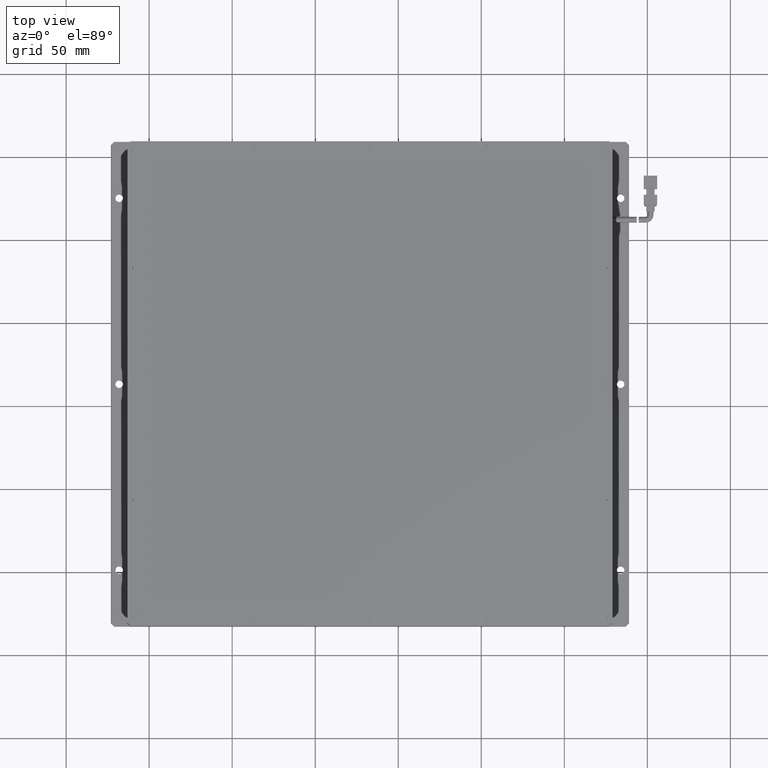
[diagram: clean part render]
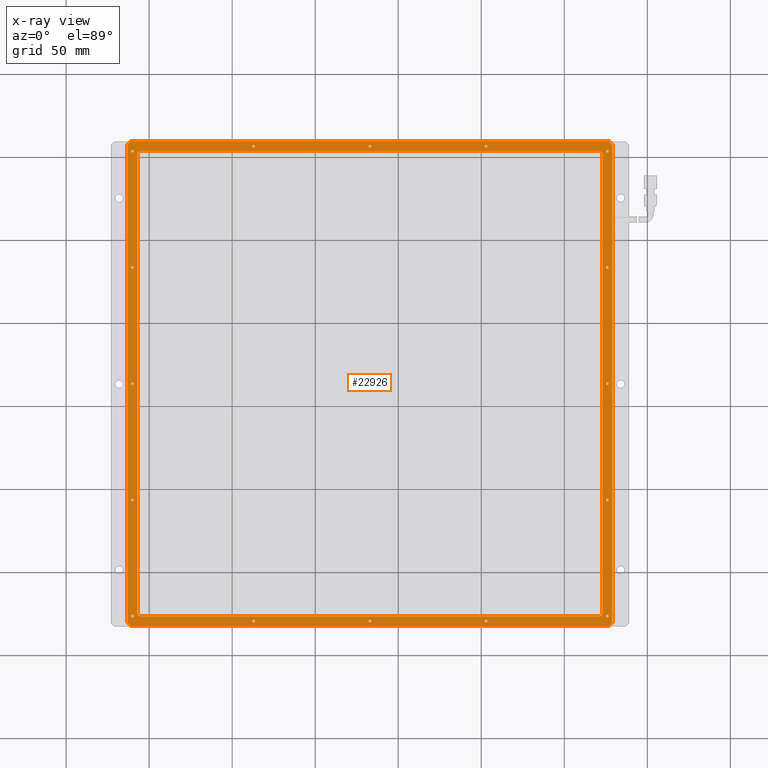
[diagram: x-ray — body ghosted, one internal face saturated and labeled with its STEP entity id]
A machine part, top view, then the same camera in x-ray: the body is ghosted and one INTERNAL B-rep face — a face not visible from any outside direction — is saturated and labeled: STEP entity #22926.
In plain terms, the highlighted planar face has unit normal (0, 0, 1).
Its self-contained STEP definition (entity closure, byte-faithful):
#121 = EDGE_CURVE ( 'NONE', #17337, #14271, #4350, .T. ) ;
#125 = EDGE_CURVE ( 'NONE', #15209, #19633, #15838, .T. ) ;
#135 = CARTESIAN_POINT ( 'NONE',  ( -37.08067712634184700, 156.2698045692266600, 8.499999999971805700 ) ) ;
#241 = EDGE_LOOP ( 'NONE', ( #23982, #7365 ) ) ;
#368 = CARTESIAN_POINT ( 'NONE',  ( 176.7193228736582000, 13.26980456922666100, 8.499999999971805700 ) ) ;
#505 = LINE ( 'NONE', #24873, #16975 ) ;
#518 = CARTESIAN_POINT ( 'NONE',  ( -110.0806771263418400, 13.26980456922666100, 8.499999999971805700 ) ) ;
#528 = FACE_OUTER_BOUND ( 'NONE', #4946, .T. ) ;
#536 = CARTESIAN_POINT ( 'NONE',  ( 178.9193228736581900, 157.2698045692267200, 8.499999999971805700 ) ) ;
#583 = ORIENTED_EDGE ( 'NONE', *, *, #10219, .T. ) ;
#628 = DIRECTION ( 'NONE',  ( 0.0000000000000000000, 0.0000000000000000000, -1.000000000000000000 ) ) ;
#667 = VERTEX_POINT ( 'NONE', #7079 ) ;
#686 = AXIS2_PLACEMENT_3D ( 'NONE', #12838, #27772, #14992 ) ;
#783 = CARTESIAN_POINT ( 'NONE',  ( 32.11932287365817700, -129.7301954307733600, 8.499999999971805700 ) ) ;
#826 = ORIENTED_EDGE ( 'NONE', *, *, #16343, .T. ) ;
#831 = DIRECTION ( 'NONE',  ( 0.0000000000000000000, 0.0000000000000000000, -1.000000000000000000 ) ) ;
#864 = CIRCLE ( 'NONE', #17338, 0.8000000000000229200 ) ;
#876 = EDGE_CURVE ( 'NONE', #27714, #27156, #8261, .T. ) ;
#913 = VECTOR ( 'NONE', #9786, 1000.000000000000000 ) ;
#1025 = DIRECTION ( 'NONE',  ( 0.0000000000000000000, -1.000000000000000000, -0.0000000000000000000 ) ) ;
#1127 = VERTEX_POINT ( 'NONE', #11295 ) ;
#1160 = DIRECTION ( 'NONE',  ( 1.000000000000000000, 0.0000000000000000000, 0.0000000000000000000 ) ) ;
#1204 = FACE_BOUND ( 'NONE', #12248, .T. ) ;
#1264 = ORIENTED_EDGE ( 'NONE', *, *, #9440, .T. ) ;
#1271 = CARTESIAN_POINT ( 'NONE',  ( -110.8806771263418400, -56.73019543077334200, 8.499999999971805700 ) ) ;
#1307 = EDGE_LOOP ( 'NONE', ( #5126, #4169, #1677, #1264, #20111, #6058, #583, #22020 ) ) ;
#1548 = EDGE_LOOP ( 'NONE', ( #2526, #27334 ) ) ;
#1561 = EDGE_CURVE ( 'NONE', #27512, #15292, #12966, .T. ) ;
#1586 = AXIS2_PLACEMENT_3D ( 'NONE', #15060, #18545, #18577 ) ;
#1677 = ORIENTED_EDGE ( 'NONE', *, *, #26527, .T. ) ;
#1778 = DIRECTION ( 'NONE',  ( 1.000000000000000000, 0.0000000000000000000, 0.0000000000000000000 ) ) ;
#1858 = FACE_BOUND ( 'NONE', #3466, .T. ) ;
#1919 = EDGE_CURVE ( 'NONE', #9877, #17704, #21268, .T. ) ;
#1934 = VERTEX_POINT ( 'NONE', #7402 ) ;
#1962 = DIRECTION ( 'NONE',  ( -0.0000000000000000000, 1.000000000000000000, 0.0000000000000000000 ) ) ;
#2010 = DIRECTION ( 'NONE',  ( -0.0000000000000000000, 1.000000000000000000, 0.0000000000000000000 ) ) ;
#2137 = CIRCLE ( 'NONE', #8951, 0.7999999999999951600 ) ;
#2301 = DIRECTION ( 'NONE',  ( 1.000000000000000000, 0.0000000000000000000, 0.0000000000000000000 ) ) ;
#2526 = ORIENTED_EDGE ( 'NONE', *, *, #27077, .T. ) ;
#2663 = DIRECTION ( 'NONE',  ( 1.000000000000000000, 0.0000000000000000000, 0.0000000000000000000 ) ) ;
#2670 = DIRECTION ( 'NONE',  ( 0.0000000000000000000, 0.0000000000000000000, -1.000000000000000000 ) ) ;
#2674 = DIRECTION ( 'NONE',  ( -0.7071067811865573400, 0.7071067811865378000, 0.0000000000000000000 ) ) ;
#2742 = CARTESIAN_POINT ( 'NONE',  ( -110.0806771263418400, -56.73019543077334200, 8.499999999971805700 ) ) ;
#2785 = VERTEX_POINT ( 'NONE', #22803 ) ;
#2939 = DIRECTION ( 'NONE',  ( 0.0000000000000000000, 0.0000000000000000000, -1.000000000000000000 ) ) ;
#2996 = CARTESIAN_POINT ( 'NONE',  ( 102.9193228736582300, -129.7301954307733600, 8.499999999971805700 ) ) ;
#3079 = CARTESIAN_POINT ( 'NONE',  ( 32.91932287365817400, -129.7301954307733600, 8.499999999971805700 ) ) ;
#3096 = AXIS2_PLACEMENT_3D ( 'NONE', #6433, #21489, #8593 ) ;
#3137 = CARTESIAN_POINT ( 'NONE',  ( 102.1193228736582500, -129.7301954307733600, 8.499999999971805700 ) ) ;
#3157 = VERTEX_POINT ( 'NONE', #17328 ) ;
#3277 = DIRECTION ( 'NONE',  ( 0.0000000000000000000, -0.0000000000000000000, -1.000000000000000000 ) ) ;
#3286 = DIRECTION ( 'NONE',  ( 0.0000000000000000000, 0.0000000000000000000, -1.000000000000000000 ) ) ;
#3433 = CARTESIAN_POINT ( 'NONE',  ( -110.0806771263418400, -126.7301954307733500, 8.499999999971805700 ) ) ;
#3441 = VECTOR ( 'NONE', #6635, 999.9999999999998900 ) ;
#3466 = EDGE_LOOP ( 'NONE', ( #24879, #16862 ) ) ;
#3543 = LINE ( 'NONE', #536, #9224 ) ;
#3743 = CARTESIAN_POINT ( 'NONE',  ( 176.9193228736579000, -132.7301954307733900, 8.499999999971805700 ) ) ;
#3821 = ORIENTED_EDGE ( 'NONE', *, *, #12165, .T. ) ;
#3824 = ORIENTED_EDGE ( 'NONE', *, *, #9458, .T. ) ;
#3844 = CARTESIAN_POINT ( 'NONE',  ( -36.28067712634185000, -129.7301954307733600, 8.499999999971805700 ) ) ;
#3943 = AXIS2_PLACEMENT_3D ( 'NONE', #7170, #22182, #9309 ) ;
#4025 = CIRCLE ( 'NONE', #6360, 0.8000000000000229200 ) ;
#4093 = CIRCLE ( 'NONE', #20514, 0.7999999999999951600 ) ;
#4110 = LINE ( 'NONE', #25962, #3441 ) ;
#4169 = ORIENTED_EDGE ( 'NONE', *, *, #26145, .T. ) ;
#4214 = DIRECTION ( 'NONE',  ( 0.0000000000000000000, 0.0000000000000000000, -1.000000000000000000 ) ) ;
#4253 = CARTESIAN_POINT ( 'NONE',  ( -107.0806771263419000, -124.7301954307734100, 8.499999999971805700 ) ) ;
#4350 = CIRCLE ( 'NONE', #1586, 0.8000000000000229200 ) ;
#4356 = CARTESIAN_POINT ( 'NONE',  ( -110.0806771263418400, 13.26980456922666100, 8.499999999971805700 ) ) ;
#4425 = AXIS2_PLACEMENT_3D ( 'NONE', #14969, #18480, #18634 ) ;
#4554 = EDGE_CURVE ( 'NONE', #14271, #17337, #4823, .T. ) ;
#4641 = CARTESIAN_POINT ( 'NONE',  ( -113.0806771263418400, -132.7301954307733600, 8.499999999971805700 ) ) ;
#4664 = EDGE_LOOP ( 'NONE', ( #27573, #24956 ) ) ;
#4823 = CIRCLE ( 'NONE', #6385, 0.8000000000000229200 ) ;
#4876 = DIRECTION ( 'NONE',  ( 1.000000000000000000, 0.0000000000000000000, 0.0000000000000000000 ) ) ;
#4882 = AXIS2_PLACEMENT_3D ( 'NONE', #10293, #25276, #12482 ) ;
#4946 = EDGE_LOOP ( 'NONE', ( #25879, #9933, #10318, #8910, #7266, #15126, #12478, #826 ) ) ;
#5021 = CIRCLE ( 'NONE', #22189, 0.7999999999999951600 ) ;
#5036 = ORIENTED_EDGE ( 'NONE', *, *, #16015, .T. ) ;
#5052 = ORIENTED_EDGE ( 'NONE', *, *, #1561, .T. ) ;
#5111 = VECTOR ( 'NONE', #20384, 999.9999999999998900 ) ;
#5126 = ORIENTED_EDGE ( 'NONE', *, *, #13226, .T. ) ;
#5132 = DIRECTION ( 'NONE',  ( 1.000000000000000000, 0.0000000000000000000, 0.0000000000000000000 ) ) ;
#5230 = DIRECTION ( 'NONE',  ( 1.000000000000000000, 0.0000000000000000000, 0.0000000000000000000 ) ) ;
#5341 = CARTESIAN_POINT ( 'NONE',  ( 33.71932287365817200, -129.7301954307733600, 8.499999999971805700 ) ) ;
#5362 = CARTESIAN_POINT ( 'NONE',  ( -110.0806771263418400, 83.26980456922672100, 8.499999999971805700 ) ) ;
#5439 = AXIS2_PLACEMENT_3D ( 'NONE', #5362, #20443, #7525 ) ;
#5488 = CIRCLE ( 'NONE', #17133, 0.7999999999999951600 ) ;
#5521 = LINE ( 'NONE', #26705, #11253 ) ;
#5583 = DIRECTION ( 'NONE',  ( 1.000000000000000000, 0.0000000000000000000, 0.0000000000000000000 ) ) ;
#5695 = VERTEX_POINT ( 'NONE', #15204 ) ;
#5820 = CARTESIAN_POINT ( 'NONE',  ( 175.9193228736581900, -56.73019543077334200, 8.499999999971805700 ) ) ;
#5902 = DIRECTION ( 'NONE',  ( 0.0000000000000000000, 0.0000000000000000000, -1.000000000000000000 ) ) ;
#6058 = ORIENTED_EDGE ( 'NONE', *, *, #125, .T. ) ;
#6194 = FACE_BOUND ( 'NONE', #11235, .T. ) ;
#6202 = VERTEX_POINT ( 'NONE', #15565 ) ;
#6238 = CARTESIAN_POINT ( 'NONE',  ( -109.2806771263418400, 153.2698045692266600, 8.499999999971805700 ) ) ;
#6304 = CIRCLE ( 'NONE', #23430, 0.7999999999999951600 ) ;
#6360 = AXIS2_PLACEMENT_3D ( 'NONE', #9863, #24880, #12051 ) ;
#6363 = CIRCLE ( 'NONE', #22754, 0.7999999999999951600 ) ;
#6385 = AXIS2_PLACEMENT_3D ( 'NONE', #22451, #831, #23046 ) ;
#6433 = CARTESIAN_POINT ( 'NONE',  ( 170.9193228736581300, 151.2698045692266100, 8.499999999971805700 ) ) ;
#6465 = DIRECTION ( 'NONE',  ( -1.000000000000000000, -0.0000000000000000000, 0.0000000000000000000 ) ) ;
#6517 = DIRECTION ( 'NONE',  ( 1.000000000000000000, 0.0000000000000000000, 0.0000000000000000000 ) ) ;
#6552 = CIRCLE ( 'NONE', #686, 0.7999999999999951600 ) ;
#6582 = ORIENTED_EDGE ( 'NONE', *, *, #13488, .T. ) ;
#6635 = DIRECTION ( 'NONE',  ( -0.7071067811865486800, -0.7071067811865464600, 0.0000000000000000000 ) ) ;
#6685 = EDGE_LOOP ( 'NONE', ( #14333, #5052 ) ) ;
#6767 = VERTEX_POINT ( 'NONE', #25605 ) ;
#6869 = FACE_BOUND ( 'NONE', #25315, .T. ) ;
#6897 = CIRCLE ( 'NONE', #8367, 0.8000000000000229200 ) ;
#6916 = CARTESIAN_POINT ( 'NONE',  ( 176.7193228736582000, 153.2698045692266600, 8.499999999971805700 ) ) ;
#7079 = CARTESIAN_POINT ( 'NONE',  ( -109.2806771263418400, -126.7301954307733500, 8.499999999971805700 ) ) ;
#7148 = CARTESIAN_POINT ( 'NONE',  ( -36.28067712634185000, 156.2698045692266600, 8.499999999971805700 ) ) ;
#7170 = CARTESIAN_POINT ( 'NONE',  ( -110.0806771263418400, -126.7301954307733500, 8.499999999971805700 ) ) ;
#7225 = DIRECTION ( 'NONE',  ( 0.0000000000000000000, 0.0000000000000000000, -1.000000000000000000 ) ) ;
#7266 = ORIENTED_EDGE ( 'NONE', *, *, #13482, .T. ) ;
#7297 = VECTOR ( 'NONE', #1962, 1000.000000000000000 ) ;
#7323 = AXIS2_PLACEMENT_3D ( 'NONE', #22540, #9686, #24716 ) ;
#7329 = EDGE_CURVE ( 'NONE', #16995, #22467, #16706, .T. ) ;
#7337 = EDGE_CURVE ( 'NONE', #22844, #11644, #16054, .T. ) ;
#7365 = ORIENTED_EDGE ( 'NONE', *, *, #11408, .T. ) ;
#7402 = CARTESIAN_POINT ( 'NONE',  ( -37.88067712634184400, -129.7301954307733600, 8.499999999971805700 ) ) ;
#7403 = CARTESIAN_POINT ( 'NONE',  ( -110.8806771263418400, 153.2698045692266600, 8.499999999971805700 ) ) ;
#7411 = VERTEX_POINT ( 'NONE', #12984 ) ;
#7475 = CARTESIAN_POINT ( 'NONE',  ( -113.0806771263418400, -130.7301954307733100, 8.499999999971805700 ) ) ;
#7511 = CARTESIAN_POINT ( 'NONE',  ( 176.7193228736582000, 83.26980456922672100, 8.499999999971805700 ) ) ;
#7520 = EDGE_CURVE ( 'NONE', #14305, #12110, #25022, .T. ) ;
#7525 = DIRECTION ( 'NONE',  ( 1.000000000000000000, 0.0000000000000000000, 0.0000000000000000000 ) ) ;
#7545 = FACE_BOUND ( 'NONE', #22529, .T. ) ;
#7567 = AXIS2_PLACEMENT_3D ( 'NONE', #20120, #7225, #22230 ) ;
#7620 = CARTESIAN_POINT ( 'NONE',  ( -113.0806771263418400, 153.2698045692266100, 8.499999999971805700 ) ) ;
#7637 = DIRECTION ( 'NONE',  ( 0.0000000000000000000, 0.0000000000000000000, -1.000000000000000000 ) ) ;
#7639 = AXIS2_PLACEMENT_3D ( 'NONE', #17105, #4214, #19282 ) ;
#7776 = EDGE_CURVE ( 'NONE', #6202, #21687, #864, .T. ) ;
#7824 = VECTOR ( 'NONE', #6465, 1000.000000000000000 ) ;
#7979 = DIRECTION ( 'NONE',  ( 1.000000000000000000, 0.0000000000000000000, 0.0000000000000000000 ) ) ;
#7984 = CARTESIAN_POINT ( 'NONE',  ( 178.9193228736582500, -130.7301954307732200, 8.499999999971805700 ) ) ;
#8064 = ORIENTED_EDGE ( 'NONE', *, *, #4554, .T. ) ;
#8118 = CARTESIAN_POINT ( 'NONE',  ( 32.91932287365817400, 156.2698045692266600, 8.499999999971805700 ) ) ;
#8214 = FACE_BOUND ( 'NONE', #21236, .T. ) ;
#8241 = DIRECTION ( 'NONE',  ( 0.0000000000000000000, 0.0000000000000000000, -1.000000000000000000 ) ) ;
#8261 = CIRCLE ( 'NONE', #25309, 0.8000000000000229200 ) ;
#8295 = CIRCLE ( 'NONE', #7567, 0.7999999999999951600 ) ;
#8366 = VERTEX_POINT ( 'NONE', #26149 ) ;
#8367 = AXIS2_PLACEMENT_3D ( 'NONE', #5820, #20893, #7979 ) ;
#8406 = CIRCLE ( 'NONE', #5439, 0.7999999999999951600 ) ;
#8474 = VERTEX_POINT ( 'NONE', #22296 ) ;
#8593 = DIRECTION ( 'NONE',  ( 1.000000000000000000, 0.0000000000000000000, 0.0000000000000000000 ) ) ;
#8813 = CARTESIAN_POINT ( 'NONE',  ( 32.91932287365817400, 156.2698045692266600, 8.499999999971805700 ) ) ;
#8846 = AXIS2_PLACEMENT_3D ( 'NONE', #13516, #628, #15667 ) ;
#8861 = EDGE_LOOP ( 'NONE', ( #11988, #9250 ) ) ;
#8864 = CARTESIAN_POINT ( 'NONE',  ( -113.0806771263418400, -132.7301954307733600, 8.499999999971805700 ) ) ;
#8910 = ORIENTED_EDGE ( 'NONE', *, *, #11247, .T. ) ;
#8914 = EDGE_CURVE ( 'NONE', #7411, #17420, #12450, .T. ) ;
#8951 = AXIS2_PLACEMENT_3D ( 'NONE', #3079, #18158, #5230 ) ;
#8955 = DIRECTION ( 'NONE',  ( 1.000000000000000000, 0.0000000000000000000, -0.0000000000000000000 ) ) ;
#8962 = CARTESIAN_POINT ( 'NONE',  ( -113.0806771263418400, 157.2698045692267200, 8.499999999971805700 ) ) ;
#9224 = VECTOR ( 'NONE', #2674, 1000.000000000000000 ) ;
#9234 = CARTESIAN_POINT ( 'NONE',  ( -110.8806771263418400, -126.7301954307733500, 8.499999999971805700 ) ) ;
#9250 = ORIENTED_EDGE ( 'NONE', *, *, #7329, .T. ) ;
#9309 = DIRECTION ( 'NONE',  ( 1.000000000000000000, 0.0000000000000000000, 0.0000000000000000000 ) ) ;
#9337 = CIRCLE ( 'NONE', #3943, 0.7999999999999951600 ) ;
#9354 = DIRECTION ( 'NONE',  ( -0.0000000000000000000, 0.0000000000000000000, -1.000000000000000000 ) ) ;
#9440 = EDGE_CURVE ( 'NONE', #19296, #22041, #12444, .T. ) ;
#9458 = EDGE_CURVE ( 'NONE', #25607, #8474, #23827, .T. ) ;
#9533 = EDGE_CURVE ( 'NONE', #13414, #18841, #14812, .T. ) ;
#9686 = DIRECTION ( 'NONE',  ( 0.0000000000000000000, 0.0000000000000000000, 1.000000000000000000 ) ) ;
#9755 = EDGE_LOOP ( 'NONE', ( #25750, #12874 ) ) ;
#9786 = DIRECTION ( 'NONE',  ( 1.000000000000000000, 0.0000000000000000000, -0.0000000000000000000 ) ) ;
#9863 = CARTESIAN_POINT ( 'NONE',  ( 175.9193228736581900, 153.2698045692266600, 8.499999999971805700 ) ) ;
#9877 = VERTEX_POINT ( 'NONE', #25679 ) ;
#9894 = EDGE_CURVE ( 'NONE', #22041, #15209, #24113, .T. ) ;
#9906 = ORIENTED_EDGE ( 'NONE', *, *, #25786, .T. ) ;
#9933 = ORIENTED_EDGE ( 'NONE', *, *, #23394, .T. ) ;
#10160 = DIRECTION ( 'NONE',  ( 0.0000000000000000000, 0.0000000000000000000, -1.000000000000000000 ) ) ;
#10173 = EDGE_CURVE ( 'NONE', #8474, #25607, #10664, .T. ) ;
#10175 = CARTESIAN_POINT ( 'NONE',  ( -37.08067712634184700, 156.2698045692266600, 8.499999999971805700 ) ) ;
#10219 = EDGE_CURVE ( 'NONE', #19633, #13414, #13075, .T. ) ;
#10253 = CARTESIAN_POINT ( 'NONE',  ( 32.91932287365817400, -129.7301954307733600, 8.499999999971805700 ) ) ;
#10293 = CARTESIAN_POINT ( 'NONE',  ( 102.9193228736582300, -129.7301954307733600, 8.499999999971805700 ) ) ;
#10308 = DIRECTION ( 'NONE',  ( 1.000000000000000000, 0.0000000000000000000, 0.0000000000000000000 ) ) ;
#10318 = ORIENTED_EDGE ( 'NONE', *, *, #1919, .T. ) ;
#10338 = VERTEX_POINT ( 'NONE', #19530 ) ;
#10352 = DIRECTION ( 'NONE',  ( 0.0000000000000000000, 0.0000000000000000000, -1.000000000000000000 ) ) ;
#10527 = CIRCLE ( 'NONE', #22532, 0.8000000000000229200 ) ;
#10664 = CIRCLE ( 'NONE', #4882, 0.7999999999999951600 ) ;
#10914 = EDGE_CURVE ( 'NONE', #23495, #12221, #22352, .T. ) ;
#11007 = DIRECTION ( 'NONE',  ( 1.000000000000000000, 0.0000000000000000000, 0.0000000000000000000 ) ) ;
#11235 = EDGE_LOOP ( 'NONE', ( #20037, #20091 ) ) ;
#11247 = EDGE_CURVE ( 'NONE', #17704, #14967, #505, .T. ) ;
#11253 = VECTOR ( 'NONE', #1025, 1000.000000000000000 ) ;
#11295 = CARTESIAN_POINT ( 'NONE',  ( 170.9193228736581300, 153.2698045692266100, 8.499999999971805700 ) ) ;
#11340 = EDGE_CURVE ( 'NONE', #6767, #5695, #19332, .T. ) ;
#11365 = VERTEX_POINT ( 'NONE', #3844 ) ;
#11408 = EDGE_CURVE ( 'NONE', #18412, #22308, #17298, .T. ) ;
#11560 = ORIENTED_EDGE ( 'NONE', *, *, #27587, .T. ) ;
#11644 = VERTEX_POINT ( 'NONE', #6916 ) ;
#11869 = EDGE_LOOP ( 'NONE', ( #11560, #9906 ) ) ;
#11944 = FACE_BOUND ( 'NONE', #241, .T. ) ;
#11988 = ORIENTED_EDGE ( 'NONE', *, *, #17313, .T. ) ;
#12051 = DIRECTION ( 'NONE',  ( 1.000000000000000000, 0.0000000000000000000, 0.0000000000000000000 ) ) ;
#12110 = VERTEX_POINT ( 'NONE', #15372 ) ;
#12155 = AXIS2_PLACEMENT_3D ( 'NONE', #18829, #5902, #20960 ) ;
#12165 = EDGE_CURVE ( 'NONE', #8366, #24232, #15531, .T. ) ;
#12221 = VERTEX_POINT ( 'NONE', #7148 ) ;
#12248 = EDGE_LOOP ( 'NONE', ( #6582, #16683 ) ) ;
#12379 = DIRECTION ( 'NONE',  ( 1.000000000000000000, 0.0000000000000000000, 0.0000000000000000000 ) ) ;
#12385 = EDGE_CURVE ( 'NONE', #11644, #22844, #4025, .T. ) ;
#12444 = CIRCLE ( 'NONE', #14292, 2.000000000000001800 ) ;
#12450 = CIRCLE ( 'NONE', #21589, 0.8000000000000229200 ) ;
#12478 = ORIENTED_EDGE ( 'NONE', *, *, #23195, .T. ) ;
#12482 = DIRECTION ( 'NONE',  ( 1.000000000000000000, 0.0000000000000000000, 0.0000000000000000000 ) ) ;
#12638 = FACE_BOUND ( 'NONE', #9755, .T. ) ;
#12838 = CARTESIAN_POINT ( 'NONE',  ( -110.0806771263418400, 153.2698045692266600, 8.499999999971805700 ) ) ;
#12874 = ORIENTED_EDGE ( 'NONE', *, *, #7776, .T. ) ;
#12923 = CARTESIAN_POINT ( 'NONE',  ( -113.0806771263418400, 159.2698045692266900, 8.499999999971805700 ) ) ;
#12966 = CIRCLE ( 'NONE', #21768, 0.7999999999999951600 ) ;
#12984 = CARTESIAN_POINT ( 'NONE',  ( 176.7193228736582000, -126.7301954307733500, 8.499999999971805700 ) ) ;
#13075 = LINE ( 'NONE', #14849, #7297 ) ;
#13087 = CARTESIAN_POINT ( 'NONE',  ( -113.0806771263418400, -126.7301954307734100, 8.499999999971805700 ) ) ;
#13226 = EDGE_CURVE ( 'NONE', #18841, #1127, #18056, .T. ) ;
#13323 = EDGE_CURVE ( 'NONE', #21687, #6202, #6897, .T. ) ;
#13332 = FACE_BOUND ( 'NONE', #8861, .T. ) ;
#13364 = ORIENTED_EDGE ( 'NONE', *, *, #21974, .T. ) ;
#13414 = VERTEX_POINT ( 'NONE', #25432 ) ;
#13442 = VECTOR ( 'NONE', #25858, 1000.000000000000000 ) ;
#13482 = EDGE_CURVE ( 'NONE', #14967, #20477, #18036, .T. ) ;
#13488 = EDGE_CURVE ( 'NONE', #16832, #18882, #6552, .T. ) ;
#13516 = CARTESIAN_POINT ( 'NONE',  ( -110.0806771263418400, 153.2698045692266600, 8.499999999971805700 ) ) ;
#13699 = ORIENTED_EDGE ( 'NONE', *, *, #19510, .T. ) ;
#13710 = CARTESIAN_POINT ( 'NONE',  ( 175.1193228736581800, 153.2698045692266600, 8.499999999971805700 ) ) ;
#13833 = CARTESIAN_POINT ( 'NONE',  ( -109.2806771263418400, -56.73019543077334200, 8.499999999971805700 ) ) ;
#14066 = DIRECTION ( 'NONE',  ( 0.0000000000000000000, 0.0000000000000000000, -1.000000000000000000 ) ) ;
#14067 = CARTESIAN_POINT ( 'NONE',  ( 176.7193228736582000, -56.73019543077334200, 8.499999999971805700 ) ) ;
#14125 = ORIENTED_EDGE ( 'NONE', *, *, #121, .T. ) ;
#14271 = VERTEX_POINT ( 'NONE', #368 ) ;
#14292 = AXIS2_PLACEMENT_3D ( 'NONE', #22228, #9354, #24405 ) ;
#14305 = VERTEX_POINT ( 'NONE', #8962 ) ;
#14317 = CIRCLE ( 'NONE', #15729, 0.7999999999999951600 ) ;
#14333 = ORIENTED_EDGE ( 'NONE', *, *, #23349, .T. ) ;
#14396 = CARTESIAN_POINT ( 'NONE',  ( -37.88067712634184400, 156.2698045692266600, 8.499999999971805700 ) ) ;
#14407 = VERTEX_POINT ( 'NONE', #9234 ) ;
#14499 = CARTESIAN_POINT ( 'NONE',  ( 175.1193228736581800, 83.26980456922672100, 8.499999999971805700 ) ) ;
#14513 = EDGE_CURVE ( 'NONE', #667, #14407, #20606, .T. ) ;
#14683 = DIRECTION ( 'NONE',  ( 0.0000000000000000000, 0.0000000000000000000, -1.000000000000000000 ) ) ;
#14812 = CIRCLE ( 'NONE', #25722, 2.000000000000001800 ) ;
#14849 = CARTESIAN_POINT ( 'NONE',  ( -107.0806771263419000, -132.7301954307733600, 8.499999999971805700 ) ) ;
#14967 = VERTEX_POINT ( 'NONE', #7984 ) ;
#14969 = CARTESIAN_POINT ( 'NONE',  ( -105.0806771263419000, -124.7301954307734100, 8.499999999971805700 ) ) ;
#14992 = DIRECTION ( 'NONE',  ( 1.000000000000000000, 0.0000000000000000000, 0.0000000000000000000 ) ) ;
#15060 = CARTESIAN_POINT ( 'NONE',  ( 175.9193228736581900, 13.26980456922666100, 8.499999999971805700 ) ) ;
#15126 = ORIENTED_EDGE ( 'NONE', *, *, #22759, .T. ) ;
#15190 = DIRECTION ( 'NONE',  ( 0.0000000000000000000, 0.0000000000000000000, -1.000000000000000000 ) ) ;
#15204 = CARTESIAN_POINT ( 'NONE',  ( 103.7193228736582300, 156.2698045692266600, 8.499999999971805700 ) ) ;
#15209 = VERTEX_POINT ( 'NONE', #15641 ) ;
#15292 = VERTEX_POINT ( 'NONE', #5341 ) ;
#15372 = CARTESIAN_POINT ( 'NONE',  ( -113.0806771263418400, -130.7301954307733100, 8.499999999971805700 ) ) ;
#15531 = CIRCLE ( 'NONE', #23251, 0.7999999999999951600 ) ;
#15556 = DIRECTION ( 'NONE',  ( 0.0000000000000000000, 0.0000000000000000000, -1.000000000000000000 ) ) ;
#15564 = CARTESIAN_POINT ( 'NONE',  ( 175.9193228736581900, -126.7301954307733500, 8.499999999971805700 ) ) ;
#15565 = CARTESIAN_POINT ( 'NONE',  ( 175.1193228736581800, -56.73019543077334200, 8.499999999971805700 ) ) ;
#15641 = CARTESIAN_POINT ( 'NONE',  ( -105.0806771263419000, -126.7301954307734100, 8.499999999971805700 ) ) ;
#15667 = DIRECTION ( 'NONE',  ( 1.000000000000000000, 0.0000000000000000000, 0.0000000000000000000 ) ) ;
#15729 = AXIS2_PLACEMENT_3D ( 'NONE', #26828, #14066, #1160 ) ;
#15838 = CIRCLE ( 'NONE', #4425, 2.000000000000001800 ) ;
#15848 = CARTESIAN_POINT ( 'NONE',  ( 175.9193228736581900, 83.26980456922672100, 8.499999999971805700 ) ) ;
#15866 = EDGE_CURVE ( 'NONE', #22308, #18412, #5488, .T. ) ;
#16015 = EDGE_CURVE ( 'NONE', #2785, #10338, #20982, .T. ) ;
#16054 = CIRCLE ( 'NONE', #21780, 0.8000000000000229200 ) ;
#16176 = VERTEX_POINT ( 'NONE', #27468 ) ;
#16188 = CARTESIAN_POINT ( 'NONE',  ( -105.0806771263419000, 151.2698045692266100, 8.499999999971805700 ) ) ;
#16199 = CARTESIAN_POINT ( 'NONE',  ( -110.0806771263418400, 83.26980456922672100, 8.499999999971805700 ) ) ;
#16343 = EDGE_CURVE ( 'NONE', #3157, #14305, #4110, .T. ) ;
#16609 = VERTEX_POINT ( 'NONE', #26970 ) ;
#16683 = ORIENTED_EDGE ( 'NONE', *, *, #16959, .T. ) ;
#16706 = CIRCLE ( 'NONE', #17498, 0.7999999999999951600 ) ;
#16832 = VERTEX_POINT ( 'NONE', #6238 ) ;
#16862 = ORIENTED_EDGE ( 'NONE', *, *, #7337, .T. ) ;
#16959 = EDGE_CURVE ( 'NONE', #18882, #16832, #25208, .T. ) ;
#16974 = AXIS2_PLACEMENT_3D ( 'NONE', #16199, #3286, #18350 ) ;
#16975 = VECTOR ( 'NONE', #27013, 1000.000000000000100 ) ;
#16995 = VERTEX_POINT ( 'NONE', #19961 ) ;
#17081 = EDGE_CURVE ( 'NONE', #10338, #2785, #8406, .T. ) ;
#17105 = CARTESIAN_POINT ( 'NONE',  ( 175.9193228736581900, -126.7301954307733500, 8.499999999971805700 ) ) ;
#17133 = AXIS2_PLACEMENT_3D ( 'NONE', #2742, #17797, #4876 ) ;
#17139 = AXIS2_PLACEMENT_3D ( 'NONE', #2996, #18070, #5132 ) ;
#17298 = CIRCLE ( 'NONE', #25064, 0.7999999999999951600 ) ;
#17313 = EDGE_CURVE ( 'NONE', #22467, #16995, #5021, .T. ) ;
#17328 = CARTESIAN_POINT ( 'NONE',  ( -111.0806771263418400, 159.2698045692267500, 8.499999999971805700 ) ) ;
#17337 = VERTEX_POINT ( 'NONE', #19594 ) ;
#17338 = AXIS2_PLACEMENT_3D ( 'NONE', #20553, #7637, #22641 ) ;
#17344 = VECTOR ( 'NONE', #2010, 1000.000000000000000 ) ;
#17420 = VERTEX_POINT ( 'NONE', #24126 ) ;
#17498 = AXIS2_PLACEMENT_3D ( 'NONE', #8118, #23148, #10308 ) ;
#17672 = FACE_BOUND ( 'NONE', #21312, .T. ) ;
#17704 = VERTEX_POINT ( 'NONE', #3743 ) ;
#17718 = DIRECTION ( 'NONE',  ( 1.000000000000000000, 0.0000000000000000000, 0.0000000000000000000 ) ) ;
#17797 = DIRECTION ( 'NONE',  ( 0.0000000000000000000, 0.0000000000000000000, -1.000000000000000000 ) ) ;
#18004 = DIRECTION ( 'NONE',  ( 1.000000000000000000, 0.0000000000000000000, 0.0000000000000000000 ) ) ;
#18036 = LINE ( 'NONE', #19214, #17344 ) ;
#18056 = LINE ( 'NONE', #7620, #913 ) ;
#18070 = DIRECTION ( 'NONE',  ( 0.0000000000000000000, 0.0000000000000000000, -1.000000000000000000 ) ) ;
#18158 = DIRECTION ( 'NONE',  ( 0.0000000000000000000, 0.0000000000000000000, -1.000000000000000000 ) ) ;
#18338 = DIRECTION ( 'NONE',  ( 1.000000000000000000, 0.0000000000000000000, 0.0000000000000000000 ) ) ;
#18349 = FACE_BOUND ( 'NONE', #27395, .T. ) ;
#18350 = DIRECTION ( 'NONE',  ( 1.000000000000000000, 0.0000000000000000000, 0.0000000000000000000 ) ) ;
#18412 = VERTEX_POINT ( 'NONE', #1271 ) ;
#18480 = DIRECTION ( 'NONE',  ( -0.0000000000000000000, -0.0000000000000000000, -1.000000000000000000 ) ) ;
#18505 = DIRECTION ( 'NONE',  ( 0.0000000000000000000, 0.0000000000000000000, -1.000000000000000000 ) ) ;
#18545 = DIRECTION ( 'NONE',  ( 0.0000000000000000000, 0.0000000000000000000, -1.000000000000000000 ) ) ;
#18577 = DIRECTION ( 'NONE',  ( 1.000000000000000000, 0.0000000000000000000, 0.0000000000000000000 ) ) ;
#18634 = DIRECTION ( 'NONE',  ( 1.000000000000000000, 0.0000000000000000000, 0.0000000000000000000 ) ) ;
#18719 = VECTOR ( 'NONE', #26140, 1000.000000000000000 ) ;
#18829 = CARTESIAN_POINT ( 'NONE',  ( 102.9193228736582300, 156.2698045692266600, 8.499999999971805700 ) ) ;
#18841 = VERTEX_POINT ( 'NONE', #20122 ) ;
#18882 = VERTEX_POINT ( 'NONE', #7403 ) ;
#18950 = DIRECTION ( 'NONE',  ( 1.000000000000000000, 0.0000000000000000000, 0.0000000000000000000 ) ) ;
#19053 = FACE_BOUND ( 'NONE', #4664, .T. ) ;
#19149 = ORIENTED_EDGE ( 'NONE', *, *, #17081, .T. ) ;
#19214 = CARTESIAN_POINT ( 'NONE',  ( 178.9193228736581900, -132.7301954307733600, 8.499999999971805700 ) ) ;
#19282 = DIRECTION ( 'NONE',  ( 1.000000000000000000, 0.0000000000000000000, 0.0000000000000000000 ) ) ;
#19296 = VERTEX_POINT ( 'NONE', #22104 ) ;
#19332 = CIRCLE ( 'NONE', #12155, 0.7999999999999951600 ) ;
#19368 = CARTESIAN_POINT ( 'NONE',  ( 170.9193228736581300, -126.7301954307734100, 8.499999999971805700 ) ) ;
#19441 = DIRECTION ( 'NONE',  ( 0.0000000000000000000, 0.0000000000000000000, -1.000000000000000000 ) ) ;
#19510 = EDGE_CURVE ( 'NONE', #12221, #23495, #4093, .T. ) ;
#19530 = CARTESIAN_POINT ( 'NONE',  ( -109.2806771263418400, 83.26980456922672100, 8.499999999971805700 ) ) ;
#19539 = AXIS2_PLACEMENT_3D ( 'NONE', #135, #15190, #2301 ) ;
#19594 = CARTESIAN_POINT ( 'NONE',  ( 175.1193228736581800, 13.26980456922666100, 8.499999999971805700 ) ) ;
#19633 = VERTEX_POINT ( 'NONE', #4253 ) ;
#19797 = ORIENTED_EDGE ( 'NONE', *, *, #10914, .T. ) ;
#19826 = DIRECTION ( 'NONE',  ( 0.0000000000000000000, 0.0000000000000000000, -1.000000000000000000 ) ) ;
#19846 = ORIENTED_EDGE ( 'NONE', *, *, #10173, .T. ) ;
#19961 = CARTESIAN_POINT ( 'NONE',  ( 32.11932287365817700, 156.2698045692266600, 8.499999999971805700 ) ) ;
#20037 = ORIENTED_EDGE ( 'NONE', *, *, #14513, .T. ) ;
#20091 = ORIENTED_EDGE ( 'NONE', *, *, #25563, .T. ) ;
#20111 = ORIENTED_EDGE ( 'NONE', *, *, #9894, .T. ) ;
#20120 = CARTESIAN_POINT ( 'NONE',  ( -37.08067712634184700, -129.7301954307733600, 8.499999999971805700 ) ) ;
#20122 = CARTESIAN_POINT ( 'NONE',  ( -105.0806771263419000, 153.2698045692266100, 8.499999999971805700 ) ) ;
#20203 = CARTESIAN_POINT ( 'NONE',  ( 178.9193228736582500, 157.2698045692267200, 8.499999999971805700 ) ) ;
#20343 = PLANE ( 'NONE',  #7323 ) ;
#20384 = DIRECTION ( 'NONE',  ( 0.7071067811865376900, -0.7071067811865574500, 0.0000000000000000000 ) ) ;
#20443 = DIRECTION ( 'NONE',  ( 0.0000000000000000000, 0.0000000000000000000, -1.000000000000000000 ) ) ;
#20477 = VERTEX_POINT ( 'NONE', #20203 ) ;
#20514 = AXIS2_PLACEMENT_3D ( 'NONE', #10175, #25174, #12379 ) ;
#20553 = CARTESIAN_POINT ( 'NONE',  ( 175.9193228736581900, -56.73019543077334200, 8.499999999971805700 ) ) ;
#20606 = CIRCLE ( 'NONE', #21043, 0.7999999999999951600 ) ;
#20893 = DIRECTION ( 'NONE',  ( 0.0000000000000000000, 0.0000000000000000000, -1.000000000000000000 ) ) ;
#20915 = CARTESIAN_POINT ( 'NONE',  ( 33.71932287365817200, 156.2698045692266600, 8.499999999971805700 ) ) ;
#20960 = DIRECTION ( 'NONE',  ( 1.000000000000000000, 0.0000000000000000000, 0.0000000000000000000 ) ) ;
#20965 = EDGE_CURVE ( 'NONE', #24232, #8366, #6304, .T. ) ;
#20982 = CIRCLE ( 'NONE', #16974, 0.7999999999999951600 ) ;
#21043 = AXIS2_PLACEMENT_3D ( 'NONE', #3433, #18505, #5583 ) ;
#21149 = CARTESIAN_POINT ( 'NONE',  ( -110.0806771263418400, -56.73019543077334200, 8.499999999971805700 ) ) ;
#21236 = EDGE_LOOP ( 'NONE', ( #19846, #3824 ) ) ;
#21268 = LINE ( 'NONE', #8864, #26940 ) ;
#21312 = EDGE_LOOP ( 'NONE', ( #25900, #3821 ) ) ;
#21412 = CIRCLE ( 'NONE', #7639, 0.8000000000000229200 ) ;
#21443 = CARTESIAN_POINT ( 'NONE',  ( -109.2806771263418400, 13.26980456922666100, 8.499999999971805700 ) ) ;
#21489 = DIRECTION ( 'NONE',  ( -0.0000000000000000000, -0.0000000000000000000, -1.000000000000000000 ) ) ;
#21589 = AXIS2_PLACEMENT_3D ( 'NONE', #15564, #2670, #17718 ) ;
#21687 = VERTEX_POINT ( 'NONE', #14067 ) ;
#21768 = AXIS2_PLACEMENT_3D ( 'NONE', #10253, #10352, #18950 ) ;
#21780 = AXIS2_PLACEMENT_3D ( 'NONE', #27454, #14683, #1778 ) ;
#21974 = EDGE_CURVE ( 'NONE', #17420, #7411, #21412, .T. ) ;
#22020 = ORIENTED_EDGE ( 'NONE', *, *, #9533, .T. ) ;
#22041 = VERTEX_POINT ( 'NONE', #19368 ) ;
#22104 = CARTESIAN_POINT ( 'NONE',  ( 172.9193228736581300, -124.7301954307734100, 8.499999999971805700 ) ) ;
#22182 = DIRECTION ( 'NONE',  ( 0.0000000000000000000, 0.0000000000000000000, -1.000000000000000000 ) ) ;
#22189 = AXIS2_PLACEMENT_3D ( 'NONE', #8813, #23857, #11007 ) ;
#22228 = CARTESIAN_POINT ( 'NONE',  ( 170.9193228736581300, -124.7301954307734100, 8.499999999971805700 ) ) ;
#22230 = DIRECTION ( 'NONE',  ( 1.000000000000000000, 0.0000000000000000000, 0.0000000000000000000 ) ) ;
#22256 = EDGE_LOOP ( 'NONE', ( #19149, #5036 ) ) ;
#22296 = CARTESIAN_POINT ( 'NONE',  ( 103.7193228736582300, -129.7301954307733600, 8.499999999971805700 ) ) ;
#22308 = VERTEX_POINT ( 'NONE', #13833 ) ;
#22352 = CIRCLE ( 'NONE', #19539, 0.7999999999999951600 ) ;
#22451 = CARTESIAN_POINT ( 'NONE',  ( 175.9193228736581900, 13.26980456922666100, 8.499999999971805700 ) ) ;
#22467 = VERTEX_POINT ( 'NONE', #20915 ) ;
#22529 = EDGE_LOOP ( 'NONE', ( #13699, #19797 ) ) ;
#22532 = AXIS2_PLACEMENT_3D ( 'NONE', #15848, #2939, #18004 ) ;
#22540 = CARTESIAN_POINT ( 'NONE',  ( -113.0806771263418400, -132.7301954307733600, 8.499999999971805700 ) ) ;
#22641 = DIRECTION ( 'NONE',  ( 1.000000000000000000, 0.0000000000000000000, 0.0000000000000000000 ) ) ;
#22643 = FACE_BOUND ( 'NONE', #1307, .T. ) ;
#22754 = AXIS2_PLACEMENT_3D ( 'NONE', #23015, #10160, #25162 ) ;
#22759 = EDGE_CURVE ( 'NONE', #20477, #16176, #3543, .T. ) ;
#22803 = CARTESIAN_POINT ( 'NONE',  ( -110.8806771263418400, 83.26980456922672100, 8.499999999971805700 ) ) ;
#22844 = VERTEX_POINT ( 'NONE', #13710 ) ;
#22864 = CARTESIAN_POINT ( 'NONE',  ( 175.9193228736581900, 83.26980456922672100, 8.499999999971805700 ) ) ;
#22926 = ADVANCED_FACE ( 'NONE', ( #8214, #24692, #25336, #19053, #13332, #7545, #1858, #24004, #18349, #12638, #6869, #1204, #23323, #17672, #11944, #6194, #528, #22643 ), #20343, .T. ) ;
#23015 = CARTESIAN_POINT ( 'NONE',  ( 102.9193228736582300, 156.2698045692266600, 8.499999999971805700 ) ) ;
#23046 = DIRECTION ( 'NONE',  ( 1.000000000000000000, 0.0000000000000000000, 0.0000000000000000000 ) ) ;
#23064 = DIRECTION ( 'NONE',  ( 1.000000000000000000, 0.0000000000000000000, 0.0000000000000000000 ) ) ;
#23148 = DIRECTION ( 'NONE',  ( 0.0000000000000000000, 0.0000000000000000000, -1.000000000000000000 ) ) ;
#23195 = EDGE_CURVE ( 'NONE', #16176, #3157, #24312, .T. ) ;
#23251 = AXIS2_PLACEMENT_3D ( 'NONE', #518, #15556, #2663 ) ;
#23254 = DIRECTION ( 'NONE',  ( 1.000000000000000000, 0.0000000000000000000, 0.0000000000000000000 ) ) ;
#23323 = FACE_BOUND ( 'NONE', #22256, .T. ) ;
#23349 = EDGE_CURVE ( 'NONE', #15292, #27512, #2137, .T. ) ;
#23394 = EDGE_CURVE ( 'NONE', #12110, #9877, #27269, .T. ) ;
#23430 = AXIS2_PLACEMENT_3D ( 'NONE', #4356, #19441, #6517 ) ;
#23495 = VERTEX_POINT ( 'NONE', #14396 ) ;
#23827 = CIRCLE ( 'NONE', #17139, 0.7999999999999951600 ) ;
#23857 = DIRECTION ( 'NONE',  ( 0.0000000000000000000, 0.0000000000000000000, -1.000000000000000000 ) ) ;
#23982 = ORIENTED_EDGE ( 'NONE', *, *, #15866, .T. ) ;
#24004 = FACE_BOUND ( 'NONE', #1548, .T. ) ;
#24023 = EDGE_CURVE ( 'NONE', #5695, #6767, #6363, .T. ) ;
#24113 = LINE ( 'NONE', #13087, #13442 ) ;
#24126 = CARTESIAN_POINT ( 'NONE',  ( 175.1193228736581800, -126.7301954307733500, 8.499999999971805700 ) ) ;
#24232 = VERTEX_POINT ( 'NONE', #21443 ) ;
#24312 = LINE ( 'NONE', #12923, #7824 ) ;
#24405 = DIRECTION ( 'NONE',  ( 1.000000000000000000, 0.0000000000000000000, 0.0000000000000000000 ) ) ;
#24692 = FACE_BOUND ( 'NONE', #6685, .T. ) ;
#24716 = DIRECTION ( 'NONE',  ( 1.000000000000000000, 0.0000000000000000000, -0.0000000000000000000 ) ) ;
#24873 = CARTESIAN_POINT ( 'NONE',  ( 176.9193228736579000, -132.7301954307733900, 8.499999999971805700 ) ) ;
#24879 = ORIENTED_EDGE ( 'NONE', *, *, #12385, .T. ) ;
#24880 = DIRECTION ( 'NONE',  ( 0.0000000000000000000, 0.0000000000000000000, -1.000000000000000000 ) ) ;
#24956 = ORIENTED_EDGE ( 'NONE', *, *, #11340, .T. ) ;
#25022 = LINE ( 'NONE', #4641, #18719 ) ;
#25064 = AXIS2_PLACEMENT_3D ( 'NONE', #21149, #8241, #23254 ) ;
#25162 = DIRECTION ( 'NONE',  ( 1.000000000000000000, 0.0000000000000000000, 0.0000000000000000000 ) ) ;
#25174 = DIRECTION ( 'NONE',  ( 0.0000000000000000000, 0.0000000000000000000, -1.000000000000000000 ) ) ;
#25208 = CIRCLE ( 'NONE', #8846, 0.7999999999999951600 ) ;
#25276 = DIRECTION ( 'NONE',  ( 0.0000000000000000000, 0.0000000000000000000, -1.000000000000000000 ) ) ;
#25309 = AXIS2_PLACEMENT_3D ( 'NONE', #22864, #19826, #23064 ) ;
#25315 = EDGE_LOOP ( 'NONE', ( #26393, #13364 ) ) ;
#25336 = FACE_BOUND ( 'NONE', #11869, .T. ) ;
#25432 = CARTESIAN_POINT ( 'NONE',  ( -107.0806771263419000, 151.2698045692266100, 8.499999999971805700 ) ) ;
#25563 = EDGE_CURVE ( 'NONE', #14407, #667, #9337, .T. ) ;
#25605 = CARTESIAN_POINT ( 'NONE',  ( 102.1193228736582500, 156.2698045692266600, 8.499999999971805700 ) ) ;
#25607 = VERTEX_POINT ( 'NONE', #3137 ) ;
#25679 = CARTESIAN_POINT ( 'NONE',  ( -111.0806771263418400, -132.7301954307733600, 8.499999999971805700 ) ) ;
#25722 = AXIS2_PLACEMENT_3D ( 'NONE', #16188, #3277, #18338 ) ;
#25750 = ORIENTED_EDGE ( 'NONE', *, *, #13323, .T. ) ;
#25786 = EDGE_CURVE ( 'NONE', #1934, #11365, #8295, .T. ) ;
#25858 = DIRECTION ( 'NONE',  ( -1.000000000000000000, -0.0000000000000000000, 0.0000000000000000000 ) ) ;
#25879 = ORIENTED_EDGE ( 'NONE', *, *, #7520, .T. ) ;
#25900 = ORIENTED_EDGE ( 'NONE', *, *, #20965, .T. ) ;
#25962 = CARTESIAN_POINT ( 'NONE',  ( -111.0806771263418300, 159.2698045692267500, 8.499999999971805700 ) ) ;
#26051 = CIRCLE ( 'NONE', #3096, 2.000000000000001800 ) ;
#26140 = DIRECTION ( 'NONE',  ( 0.0000000000000000000, -1.000000000000000000, -0.0000000000000000000 ) ) ;
#26145 = EDGE_CURVE ( 'NONE', #1127, #16609, #26051, .T. ) ;
#26149 = CARTESIAN_POINT ( 'NONE',  ( -110.8806771263418400, 13.26980456922666100, 8.499999999971805700 ) ) ;
#26393 = ORIENTED_EDGE ( 'NONE', *, *, #8914, .T. ) ;
#26527 = EDGE_CURVE ( 'NONE', #16609, #19296, #5521, .T. ) ;
#26705 = CARTESIAN_POINT ( 'NONE',  ( 172.9193228736581300, -132.7301954307733600, 8.499999999971805700 ) ) ;
#26828 = CARTESIAN_POINT ( 'NONE',  ( -37.08067712634184700, -129.7301954307733600, 8.499999999971805700 ) ) ;
#26940 = VECTOR ( 'NONE', #8955, 1000.000000000000000 ) ;
#26970 = CARTESIAN_POINT ( 'NONE',  ( 172.9193228736581300, 151.2698045692266100, 8.499999999971805700 ) ) ;
#27013 = DIRECTION ( 'NONE',  ( 0.7071067811865650000, 0.7071067811865300300, 0.0000000000000000000 ) ) ;
#27077 = EDGE_CURVE ( 'NONE', #27156, #27714, #10527, .T. ) ;
#27156 = VERTEX_POINT ( 'NONE', #7511 ) ;
#27269 = LINE ( 'NONE', #7475, #5111 ) ;
#27334 = ORIENTED_EDGE ( 'NONE', *, *, #876, .T. ) ;
#27395 = EDGE_LOOP ( 'NONE', ( #8064, #14125 ) ) ;
#27454 = CARTESIAN_POINT ( 'NONE',  ( 175.9193228736581900, 153.2698045692266600, 8.499999999971805700 ) ) ;
#27468 = CARTESIAN_POINT ( 'NONE',  ( 176.9193228736581900, 159.2698045692267500, 8.499999999971805700 ) ) ;
#27512 = VERTEX_POINT ( 'NONE', #783 ) ;
#27573 = ORIENTED_EDGE ( 'NONE', *, *, #24023, .T. ) ;
#27587 = EDGE_CURVE ( 'NONE', #11365, #1934, #14317, .T. ) ;
#27714 = VERTEX_POINT ( 'NONE', #14499 ) ;
#27772 = DIRECTION ( 'NONE',  ( 0.0000000000000000000, 0.0000000000000000000, -1.000000000000000000 ) ) ;